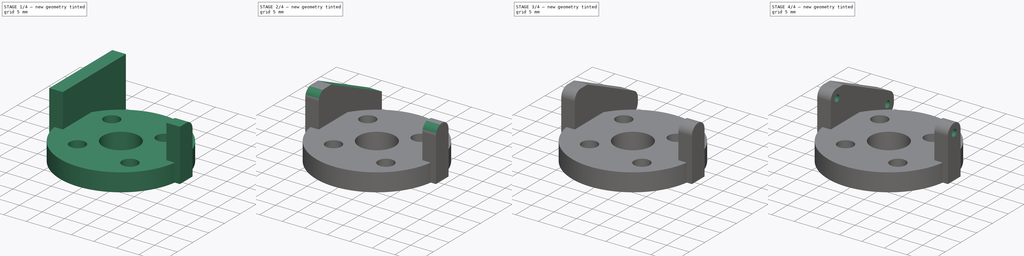
[diagram: build sequence overview — one tinted view per stage of 4, left to right]
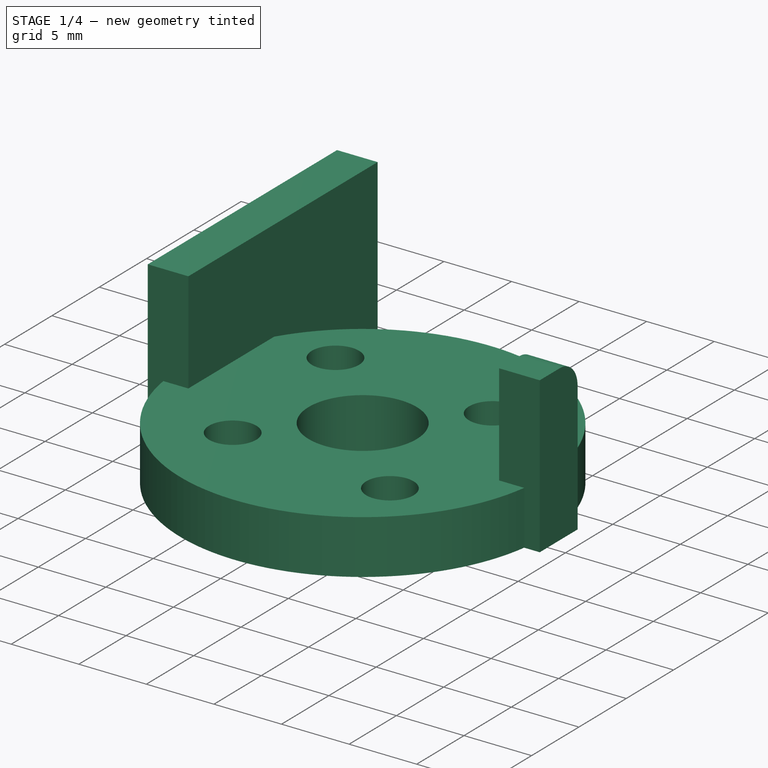
[diagram: stage 1 of 4 — iso view after this stage's code; geometry added in this stage tinted green]
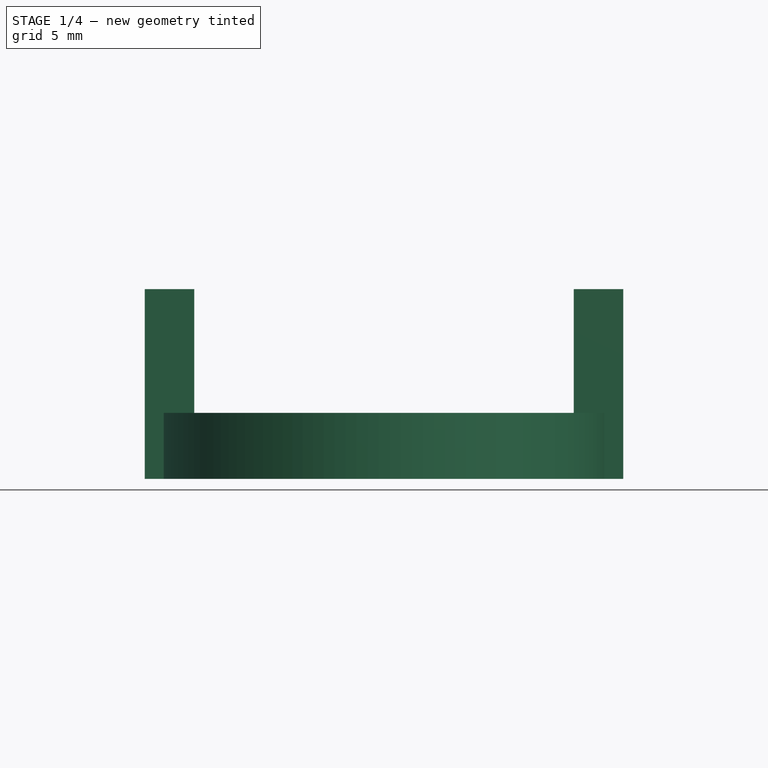
[diagram: stage 1 of 4 — front view after this stage's code; geometry added in this stage tinted green]
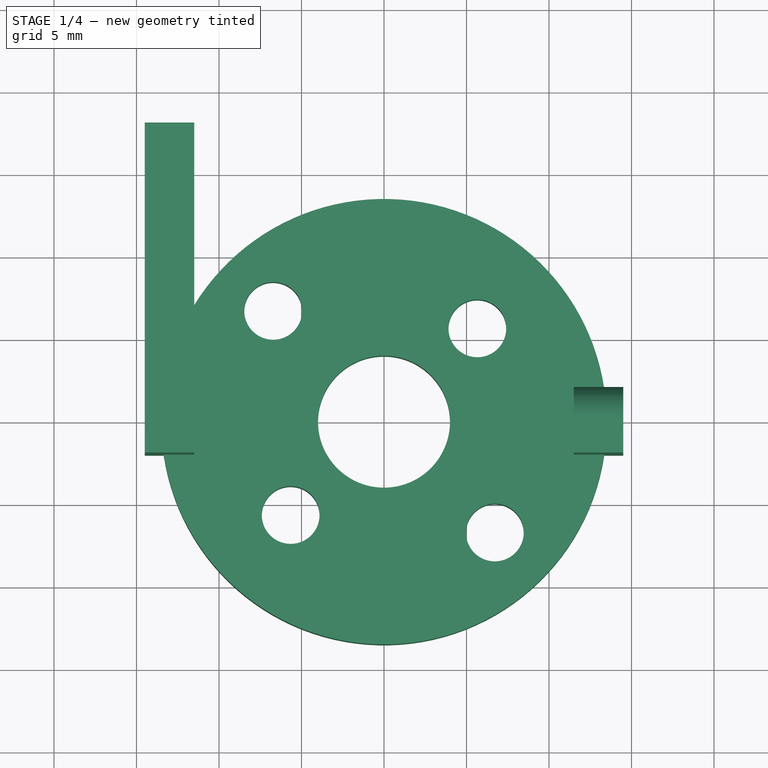
[diagram: stage 1 of 4 — top view after this stage's code; geometry added in this stage tinted green]
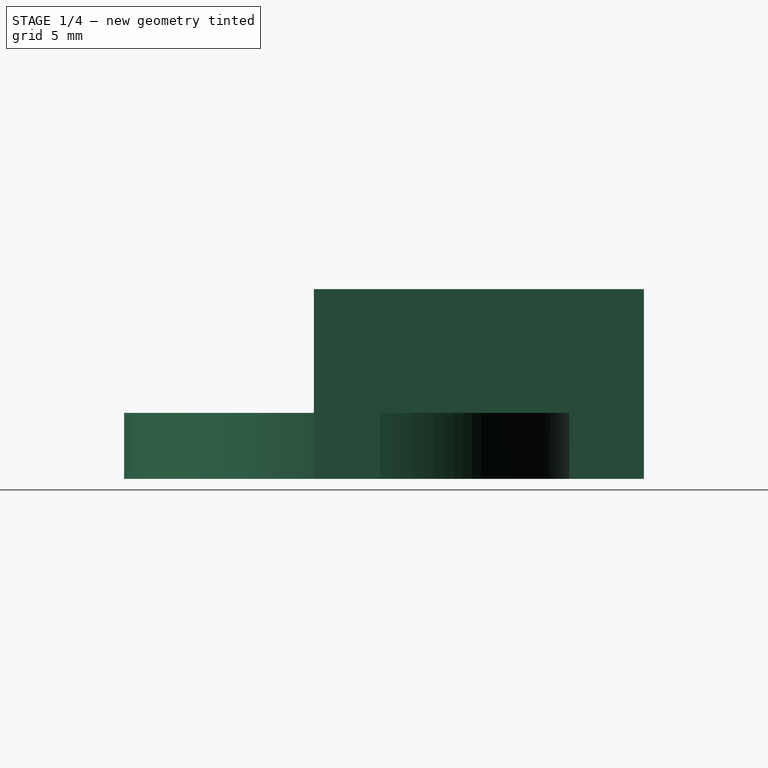
[diagram: stage 1 of 4 — right view after this stage's code; geometry added in this stage tinted green]
FCSTD DOCUMENT  (FreeCAD 0.19R)
Label: motor_holder_part
License: All rights reserved
LicenseURL: http://en.wikipedia.org/wiki/All_rights_reserved
objects: PartDesign::Fillet×6, Sketcher::SketchObject×5, PartDesign::Pocket×3, App::DocumentObjectGroup×2, PartDesign::CoordinateSystem×2, PartDesign::Pad×2, App::FeaturePython×1, PartDesign::Body×1, App::Part×1
note: 30 computed .brp shape members not serialized (recipe doc carries the construction recipe); baked Part::Feature solids carry a one-line shape summary decoded from their .brp

FEATURE [App::DocumentObjectGroup] Parts
FEATURE [PartDesign::CoordinateSystem] LCS_Origin
  AttacherType = Attacher::AttachEngine3D
  MapMode = 2
  Support = -> [X_Axis]
FEATURE [App::DocumentObjectGroup] Constraints
FEATURE [App::FeaturePython] Variables  # WARN: FeaturePython — macro-defined, semantics opaque (R4)
FEATURE [Sketcher::SketchObject] Sketch
  FullyConstrained = false
  MapMode = 5
  Support = -> [XY_Plane001]
  sketch-geometry (8):
    g0: Circle CenterX=0 CenterY=0 CenterZ=0 NormalX=0 NormalY=0 NormalZ=1 AngleXU=0 Radius=13.5
    g1: Circle CenterX=-5.65685 CenterY=-5.65685 CenterZ=0 NormalX=0 NormalY=0 NormalZ=1 AngleXU=0 Radius=1.75
    g2: Circle CenterX=5.65685 CenterY=5.65685 CenterZ=0 NormalX=0 NormalY=0 NormalZ=1 AngleXU=0 Radius=1.75
    g3: Circle CenterX=-6.71751 CenterY=6.71751 CenterZ=0 NormalX=0 NormalY=0 NormalZ=1 AngleXU=0 Radius=1.75
    g4: Circle CenterX=6.71751 CenterY=-6.71751 CenterZ=0 NormalX=0 NormalY=0 NormalZ=1 AngleXU=0 Radius=1.75
    g5: LineSegment StartX=-16.1042 StartY=-16.1042 StartZ=0 EndX=16.776 EndY=16.776 EndZ=0
    g6: LineSegment StartX=-12.9244 StartY=12.9244 StartZ=0 EndX=15.1797 EndY=-15.1797 EndZ=0
    g7: Circle CenterX=0 CenterY=0 CenterZ=0 NormalX=0 NormalY=0 NormalZ=1 AngleXU=0 Radius=4
  constraints (20):
    c: Coincident(g0,g-1)
    c: Diameter(g0) = 27
    c: Diameter(g1) = 3.5
    c: Diameter(g2) = 3.5
    c: Diameter(g3) = 3.5
    c: Diameter(g4) = 3.5
    c: PointOnObject(g0,g5)
    c: Angle(g5) = 0.785398
    c: PointOnObject(g0,g6)
    c: Angle(g6) = -0.785398
    c: PointOnObject(g2,g5)
    c: PointOnObject(g1,g5)
    c: PointOnObject(g4,g6)
    c: Distance(g3,g5) = 9.5
    c: Distance(g0,g1) = 8
    c: Distance(g0,g2) = 8
    c: Coincident(g7,g0)
    c: Diameter(g7) = 8
    c: PointOnObject(g3,g6)
    c: Distance(g0,g4) = 9.5
FEATURE [PartDesign::Pad] Pad
  Direction = (1,1,1)
  Length = 4
  Length2 = 100
  Profile = -> Sketch
  Type = 0
FEATURE [Sketcher::SketchObject] Sketch001
  FullyConstrained = true
  MapMode = 5
  Placement = pos=(0,0,0) rot=(1,0,0;3.14159rad)
  Support = -> [Pad]
  sketch-geometry (8):
    g0: LineSegment StartX=11.5 StartY=2 StartZ=0 EndX=14.5 EndY=2 EndZ=0
    g1: LineSegment StartX=14.5 StartY=2 StartZ=0 EndX=14.5 EndY=-2 EndZ=0
    g2: LineSegment StartX=14.5 StartY=-2 StartZ=0 EndX=11.5 EndY=-2 EndZ=0
    g3: LineSegment StartX=11.5 StartY=-2 StartZ=0 EndX=11.5 EndY=2 EndZ=0
    g4: LineSegment StartX=-14.5 StartY=2 StartZ=0 EndX=-11.5 EndY=2 EndZ=0
    g5: LineSegment StartX=-11.5 StartY=2 StartZ=0 EndX=-11.5 EndY=-18 EndZ=0
    g6: LineSegment StartX=-11.5 StartY=-18 StartZ=0 EndX=-14.5 EndY=-18 EndZ=0
    g7: LineSegment StartX=-14.5 StartY=-18 StartZ=0 EndX=-14.5 EndY=2 EndZ=0
  constraints (23):
    c: Coincident(g0,g1)
    c: Coincident(g1,g2)
    c: Coincident(g2,g3)
    c: Coincident(g3,g0)
    c: Horizontal(g0)
    c: Horizontal(g2)
    c: Vertical(g1)
    c: DistanceX(g0,g0) = 3
    c: DistanceY(g1,g1) = 4
    c: Symmetric(g0,g2,g-1)
    c: Distance(g-1,g3) = 11.5
    c: Coincident(g4,g5)
    c: Coincident(g5,g6)
    c: Coincident(g6,g7)
    c: Coincident(g7,g4)
    c: Horizontal(g4)
    c: Horizontal(g6)
    c: Vertical(g5)
    c: Vertical(g7)
    c: DistanceX(g4,g4) = 3
    c: DistanceY(g7,g7) = 20
    c: DistanceY(g-1,g4) = 2
    c: Distance(g-1,g5) = 11.5
FEATURE [PartDesign::Pad] Pad001
  BaseFeature = -> Pad
  Direction = (1,1,1)
  Length = 11.5
  Length2 = 100
  Profile = -> Sketch001
  Reversed = true
  Type = 0
FEATURE [PartDesign::Fillet] Fillet
  Base = -> Pad001 [Edge21]
  BaseFeature = -> Pad001
  Radius = 1.9
  SupportTransform = false
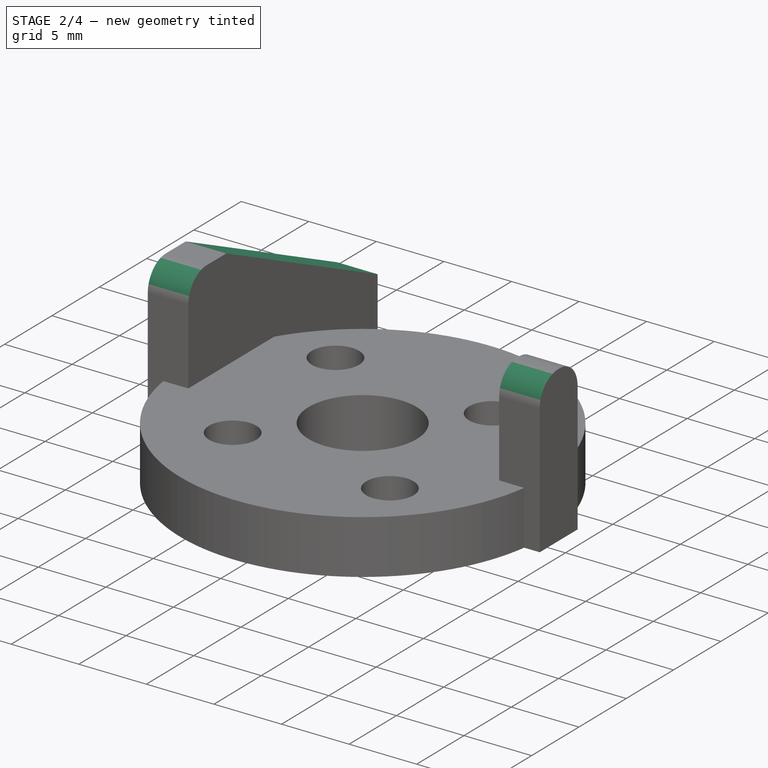
[diagram: stage 2 of 4 — iso view after this stage's code; geometry added in this stage tinted green]
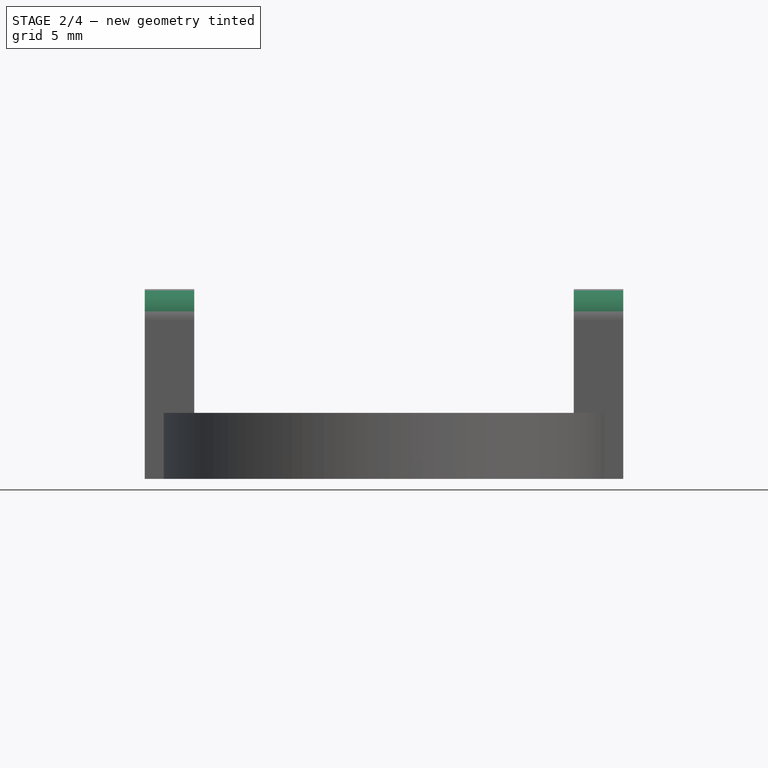
[diagram: stage 2 of 4 — front view after this stage's code; geometry added in this stage tinted green]
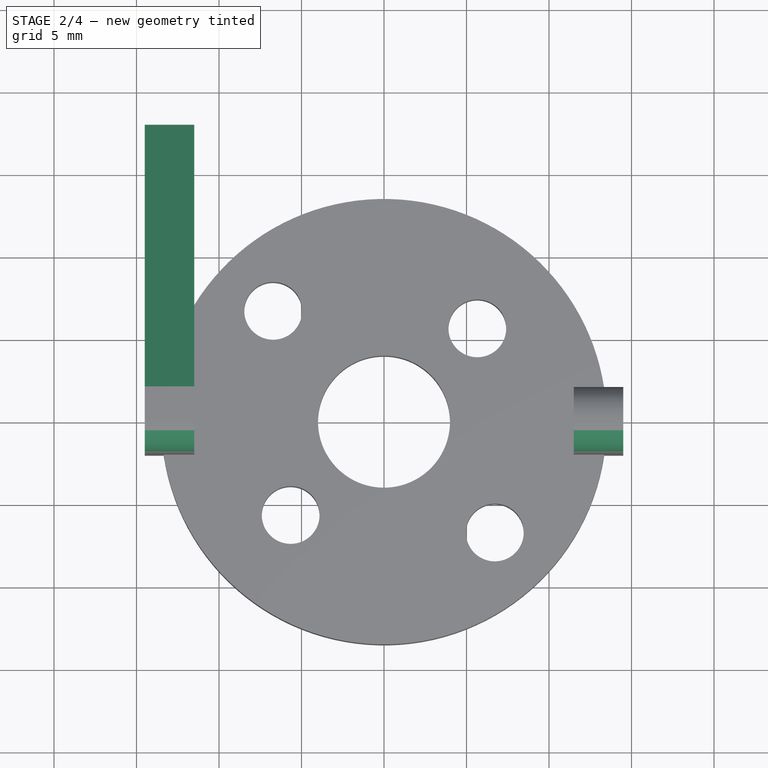
[diagram: stage 2 of 4 — top view after this stage's code; geometry added in this stage tinted green]
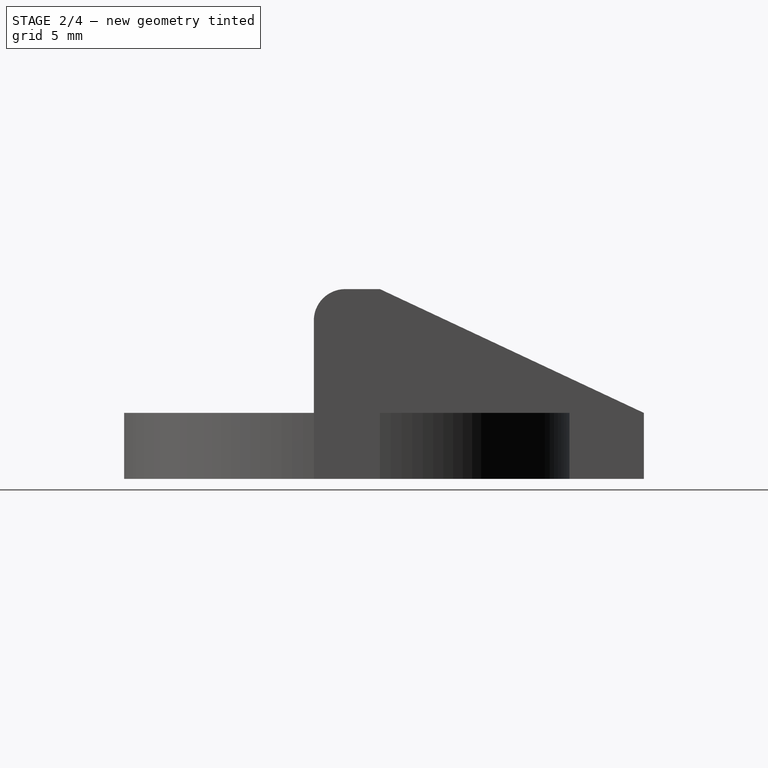
[diagram: stage 2 of 4 — right view after this stage's code; geometry added in this stage tinted green]
FEATURE [PartDesign::Fillet] Fillet001
  Base = -> Fillet [Edge31]
  BaseFeature = -> Fillet
  Radius = 1.9
  SupportTransform = false
FEATURE [PartDesign::Fillet] Fillet002
  Base = -> Fillet001 [Edge40]
  BaseFeature = -> Fillet001
  Radius = 1.9
  SupportTransform = false
FEATURE [Sketcher::SketchObject] Sketch002
  FullyConstrained = false
  MapMode = 5
  Placement = pos=(-14.5,0,0) rot=(0.57735,-0.57735,-0.57735;2.0944rad)
  Support = -> [Fillet002]
  sketch-geometry (7):
    g0: LineSegment StartX=-25.1079 StartY=4 StartZ=0 EndX=21.8351 EndY=4 EndZ=0
    g1: LineSegment StartX=-2 StartY=12.2364 StartZ=0 EndX=-2 EndY=-7.11496 EndZ=0
    g2: LineSegment StartX=-18 StartY=12.5936 StartZ=0 EndX=-18 EndY=-5.33142 EndZ=0
    g3: LineSegment StartX=-25.3664 StartY=11.5 StartZ=0 EndX=12.3719 EndY=11.5 EndZ=0
    g4: LineSegment StartX=-18 StartY=11.5 StartZ=0 EndX=-18 EndY=4 EndZ=0
    g5: LineSegment StartX=-18 StartY=4 StartZ=0 EndX=-2.00836 EndY=11.5 EndZ=0
    g6: LineSegment StartX=-2.00836 StartY=11.5 StartZ=0 EndX=-18 EndY=11.5 EndZ=0
  constraints (14):
    c: Horizontal(g0)
    c: DistanceY(g-1,g0) = 4
    c: Vertical(g1)
    c: DistanceX(g-2,g1) = -2
    c: Vertical(g2)
    c: DistanceX(g-2,g2) = -18
    c: Horizontal(g3)
    c: DistanceY(g-1,g3) = 11.5
    c: PointOnObject(g4,g0)
    c: Coincident(g4,g5)
    c: Coincident(g5,g6)
    c: Tangent(g4,g2)
    c: Tangent(g6,g3)
    c: Coincident(g6,g4)
FEATURE [PartDesign::Pocket] Pocket
  BaseFeature = -> Fillet002
  Length = 5
  Length2 = 100
  Profile = -> Sketch002
  Type = 0
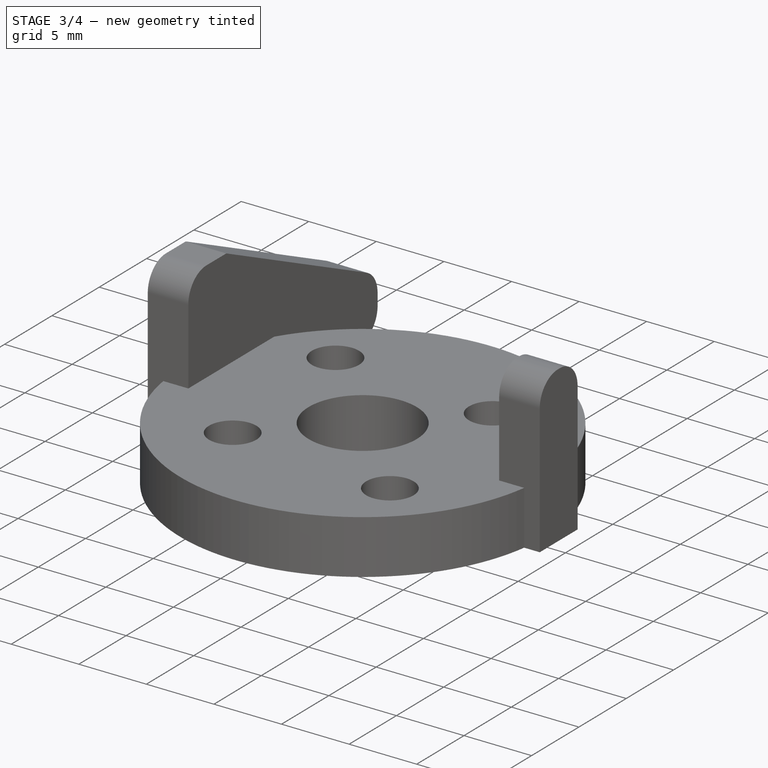
[diagram: stage 3 of 4 — iso view after this stage's code; geometry added in this stage tinted green]
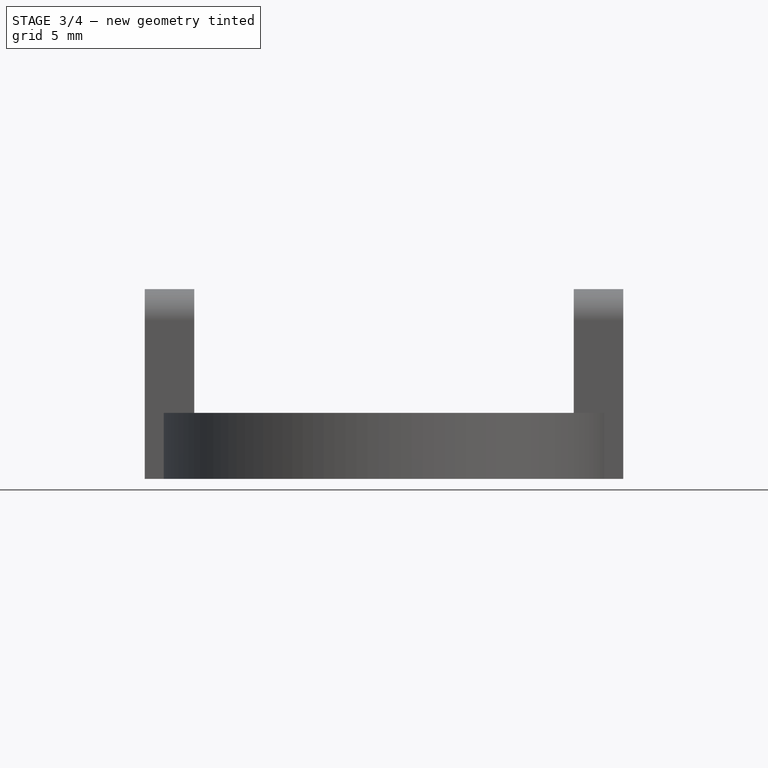
[diagram: stage 3 of 4 — front view after this stage's code; geometry added in this stage tinted green]
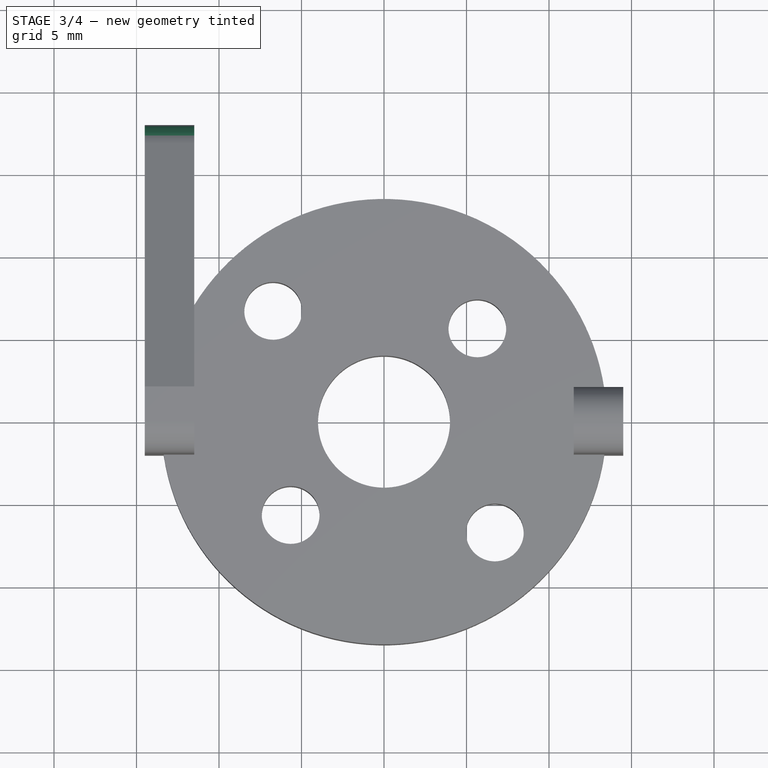
[diagram: stage 3 of 4 — top view after this stage's code; geometry added in this stage tinted green]
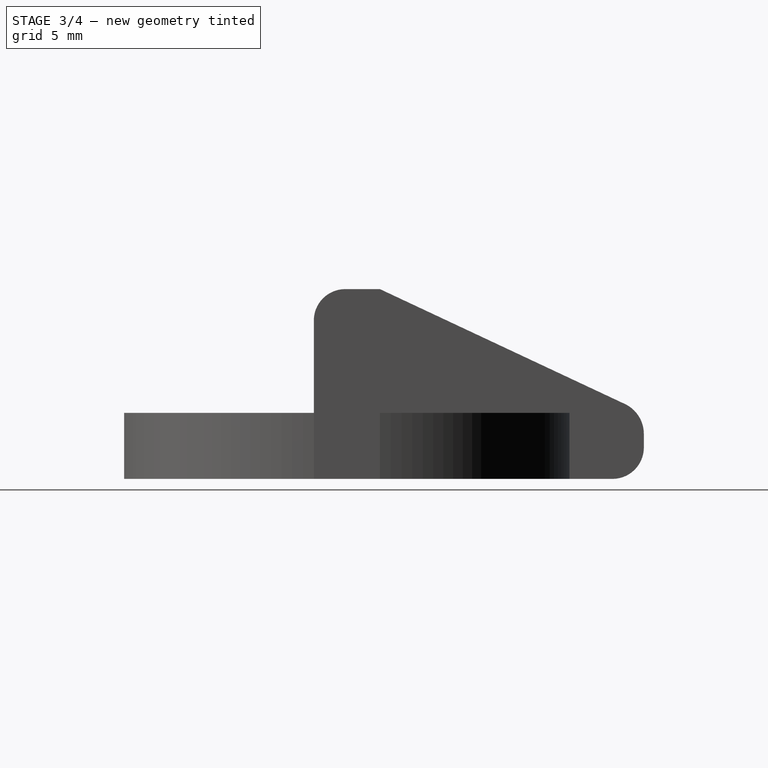
[diagram: stage 3 of 4 — right view after this stage's code; geometry added in this stage tinted green]
FEATURE [PartDesign::Fillet] Fillet003
  Base = -> Pocket [Edge36]
  BaseFeature = -> Pocket
  Radius = 2
  SupportTransform = false
FEATURE [PartDesign::Fillet] Fillet004
  Base = -> Fillet003 [Edge12]
  BaseFeature = -> Fillet003
  Radius = 1.9
  SupportTransform = false
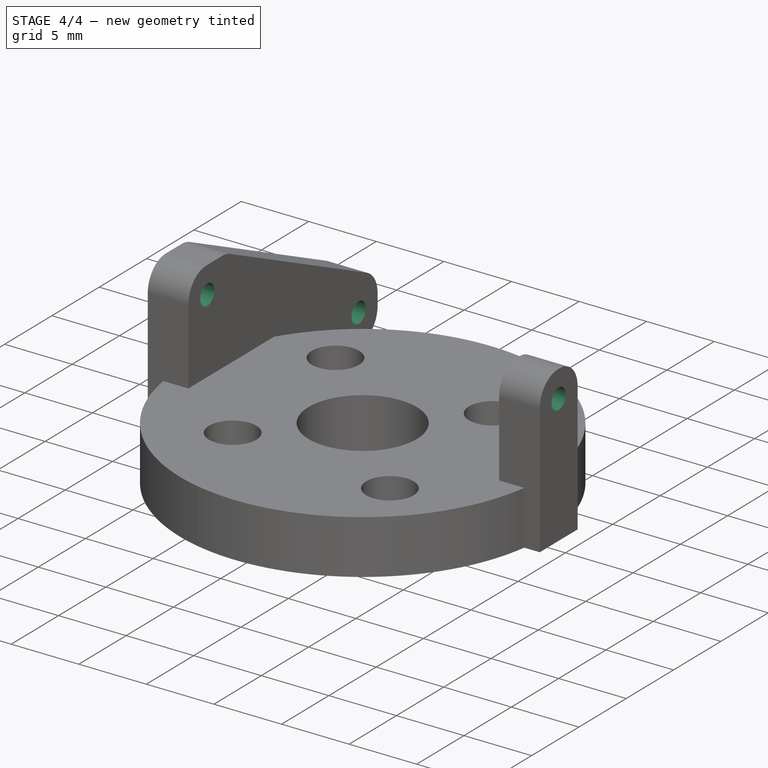
[diagram: stage 4 of 4 — iso view after this stage's code; geometry added in this stage tinted green]
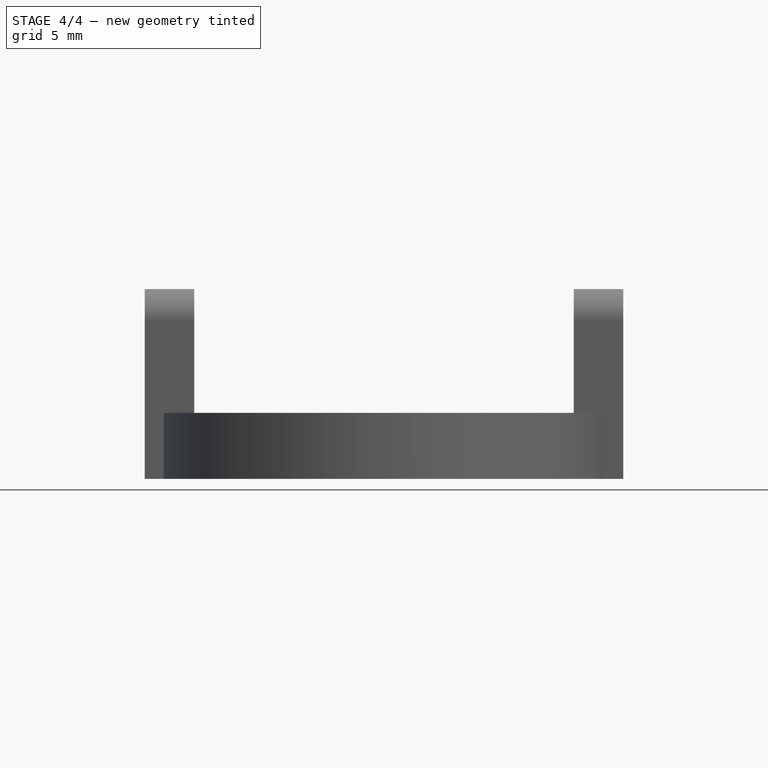
[diagram: stage 4 of 4 — front view after this stage's code; geometry added in this stage tinted green]
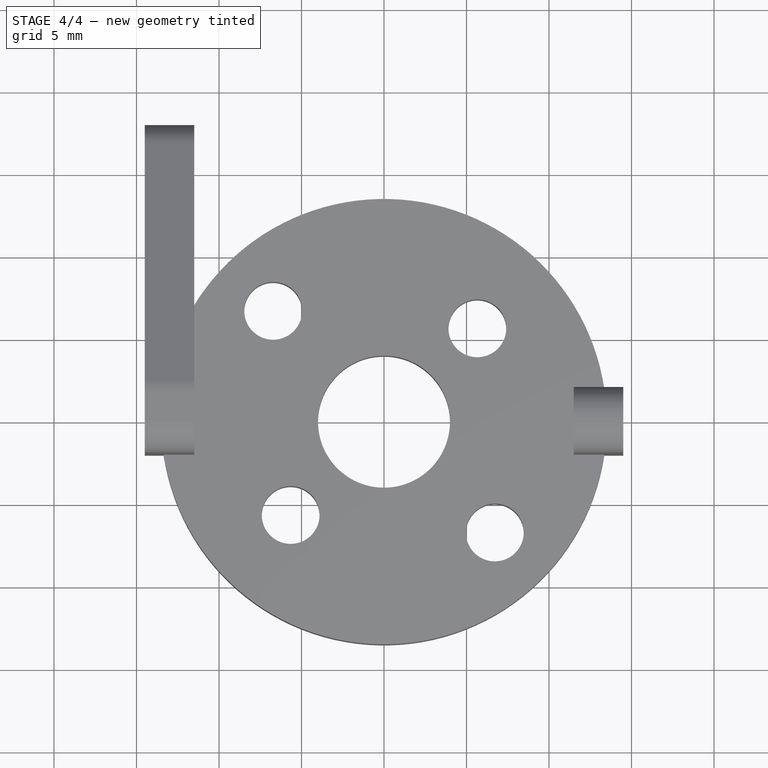
[diagram: stage 4 of 4 — top view after this stage's code; geometry added in this stage tinted green]
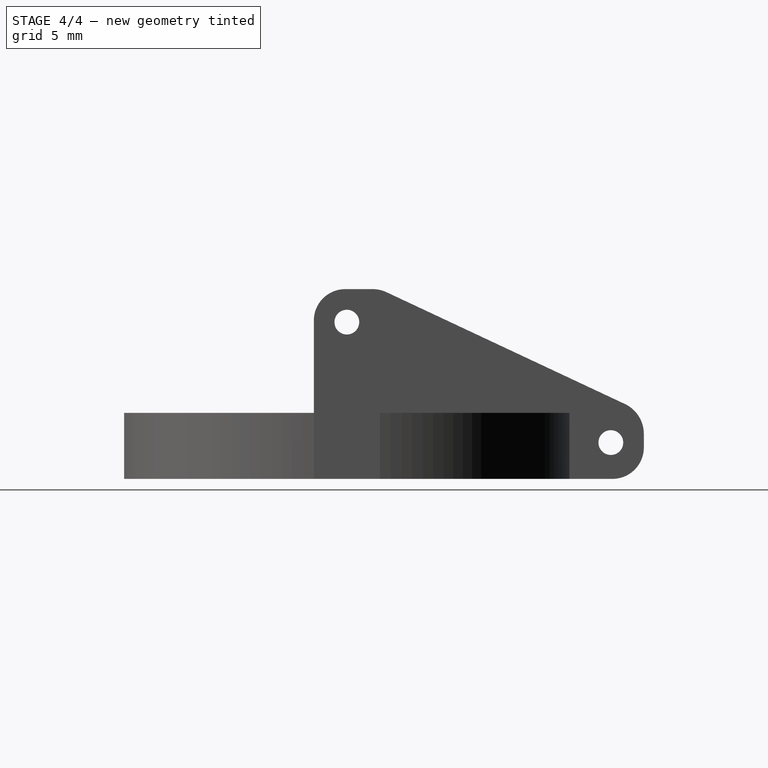
[diagram: stage 4 of 4 — right view after this stage's code; geometry added in this stage tinted green]
FEATURE [PartDesign::Fillet] Fillet005
  Base = -> Fillet004 [Edge22]
  BaseFeature = -> Fillet004
  Radius = 2
  SupportTransform = false
FEATURE [Sketcher::SketchObject] Sketch003
  FullyConstrained = false
  MapMode = 5
  Placement = pos=(-14.5,0,0) rot=(0.57735,-0.57735,-0.57735;2.0944rad)
  Support = -> [Fillet005]
  sketch-geometry (5):
    g0: LineSegment StartX=-18.7457 StartY=9.5 StartZ=0 EndX=20.6324 EndY=9.5 EndZ=0
    g1: LineSegment StartX=-19.4941 StartY=2.2 StartZ=0 EndX=24.5524 EndY=2.2 EndZ=0
    g2: LineSegment StartX=-16 StartY=7.40073 StartZ=0 EndX=-16 EndY=-4.67997 EndZ=0
    g3: Circle CenterX=-16 CenterY=2.2 CenterZ=0 NormalX=0 NormalY=0 NormalZ=1 AngleXU=0 Radius=0.75
    g4: Circle CenterX=0 CenterY=9.5 CenterZ=0 NormalX=0 NormalY=0 NormalZ=1 AngleXU=0 Radius=0.75
  constraints (12):
    c: Horizontal(g0)
    c: DistanceY(g-1,g0) = 9.5
    c: Horizontal(g1)
    c: DistanceY(g-1,g1) = 2.2
    c: Vertical(g2)
    c: DistanceX(g-2,g2) = -16
    c: PointOnObject(g3,g2)
    c: Diameter(g3) = 1.5
    c: PointOnObject(g4,g-2)
    c: Diameter(g4) = 1.5
    c: PointOnObject(g4,g0)
    c: PointOnObject(g3,g1)
FEATURE [PartDesign::Pocket] Pocket001
  BaseFeature = -> Fillet005
  Length = 5
  Length2 = 100
  Profile = -> Sketch003
  Type = 0
FEATURE [Sketcher::SketchObject] Sketch004
  FullyConstrained = false
  MapMode = 5
  Placement = pos=(14.5,0,0) rot=(0.57735,0.57735,0.57735;2.0944rad)
  Support = -> [Pocket001]
  sketch-geometry (2):
    g0: LineSegment StartX=-5.05808 StartY=9.5 StartZ=0 EndX=4.59741 EndY=9.5 EndZ=0
    g1: Circle CenterX=0 CenterY=9.5 CenterZ=0 NormalX=0 NormalY=0 NormalZ=1 AngleXU=0 Radius=0.75
  constraints (5):
    c: Horizontal(g0)
    c: DistanceY(g-1,g0) = 9.5
    c: PointOnObject(g1,g-2)
    c: Diameter(g1) = 1.5
    c: PointOnObject(g1,g0)
FEATURE [PartDesign::Pocket] Pocket002
  BaseFeature = -> Pocket001
  Length = 5
  Length2 = 100
  Profile = -> Sketch004
  Type = 0
FEATURE [PartDesign::Body] Body
  Group = -> [Sketch,Pad,Sketch001,Pad001,Fillet,Fillet001,Fillet002,Sketch002,Pocket,Fillet003,Fillet004,Fillet005,Sketch003,Pocket001,Sketch004,Pocket002]
  Origin = -> Origin001
  Tip = -> Pocket002
FEATURE [PartDesign::CoordinateSystem] LCS_1
  AttacherType = Attacher::AttachEngine3D
  MapMode = 11
  Placement = pos=(-11.5,0,9.5) rot=(0,-1,0;1.5708rad)
  Support = -> [Pocket002]
FEATURE [App::Part] Model
  Configuration = 0
  Group = -> [LCS_Origin,Constraints,Variables,Body,LCS_1]
  Origin = -> Origin
  Type = Assembly4 Model
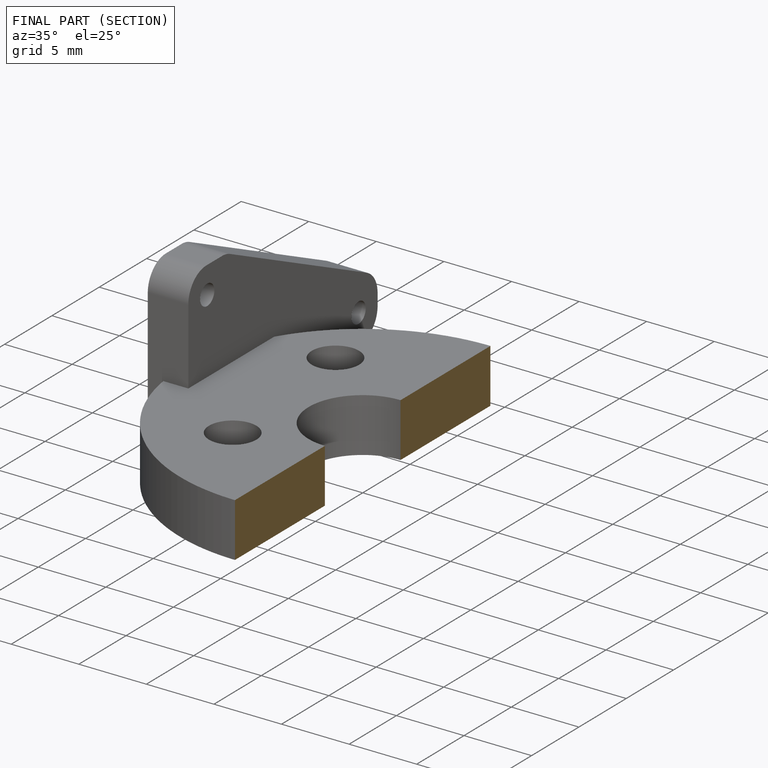
[diagram: finished part — half-section view (interior)]
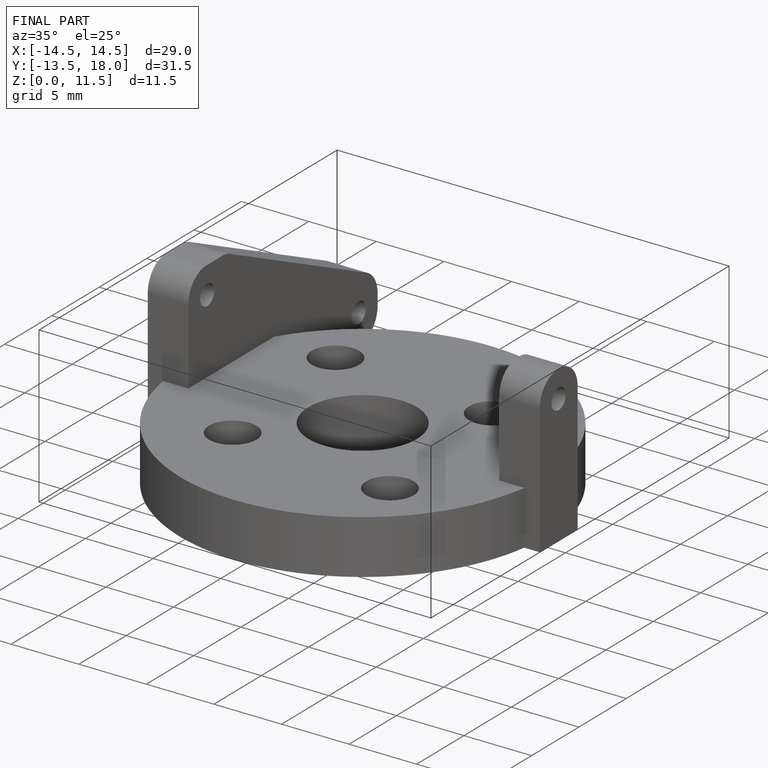
[diagram: finished part — iso view with bounding-box wireframe]
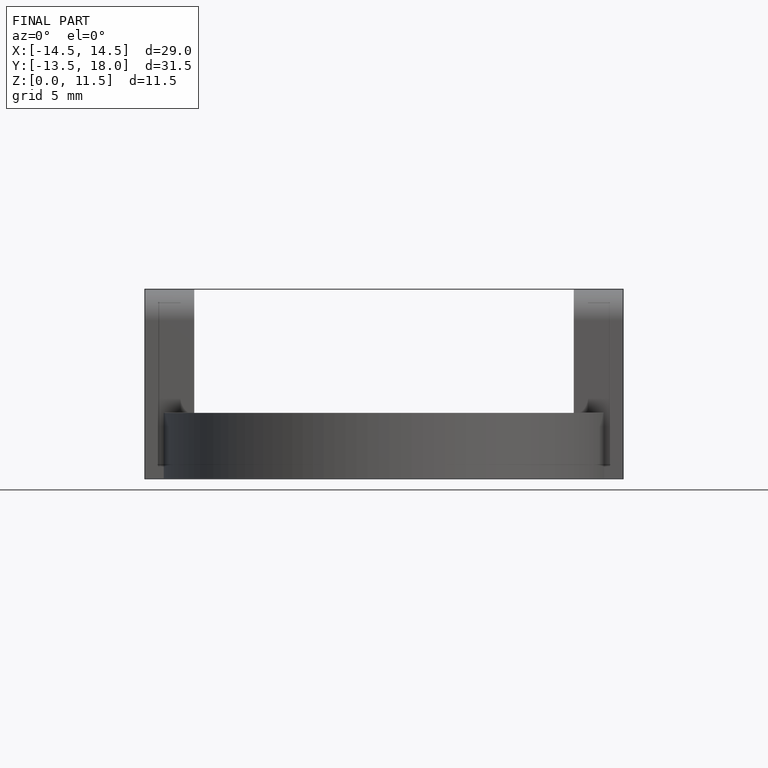
[diagram: finished part — front view with bounding-box wireframe]
